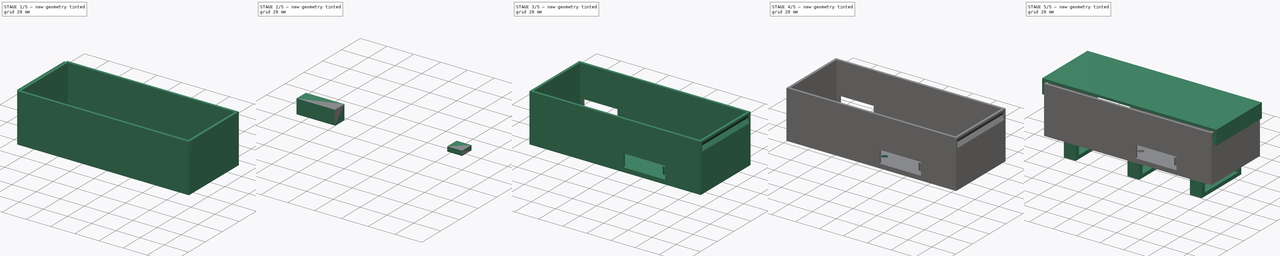
[diagram: build sequence overview — one tinted view per stage of 5, left to right]
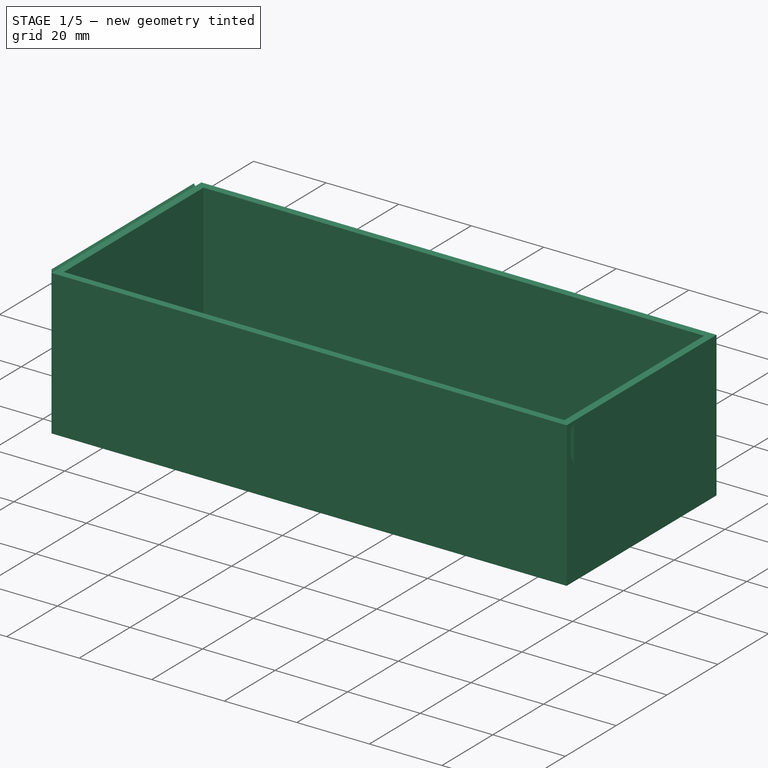
[diagram: stage 1 of 5 — iso view after this stage's code; geometry added in this stage tinted green]
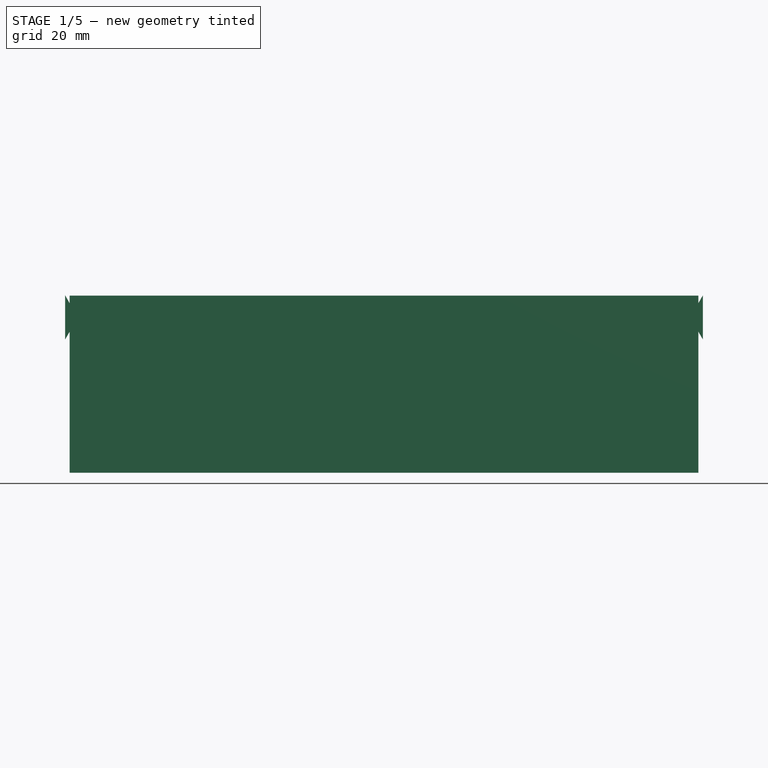
[diagram: stage 1 of 5 — front view after this stage's code; geometry added in this stage tinted green]
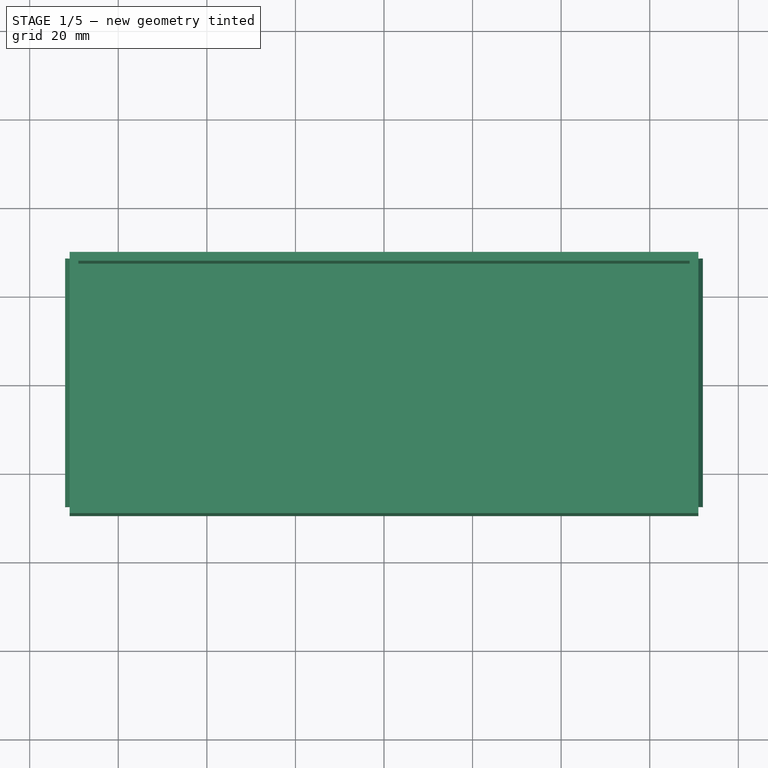
[diagram: stage 1 of 5 — top view after this stage's code; geometry added in this stage tinted green]
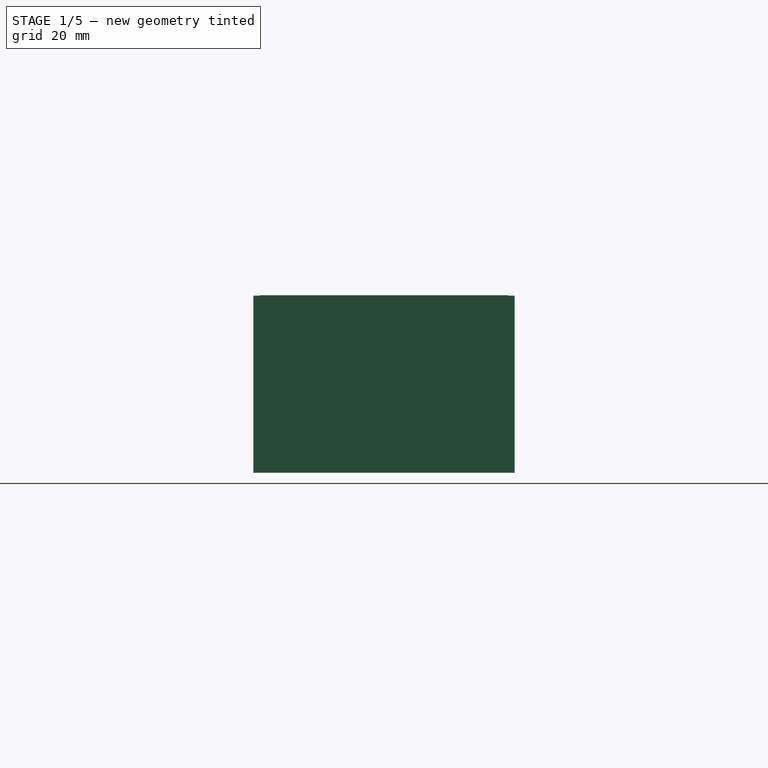
[diagram: stage 1 of 5 — right view after this stage's code; geometry added in this stage tinted green]
FCSTD DOCUMENT  (FreeCAD 0.20R29410 (Git))
Label: controller_box
License: All rights reserved
LicenseURL: http://en.wikipedia.org/wiki/All_rights_reserved
objects: Sketcher::SketchObject×11, Part::Extrusion×10, Part::Cut×7, Part::MultiFuse×2
note: 30 computed .brp shape members not serialized (recipe doc carries the construction recipe); baked Part::Feature solids carry a one-line shape summary decoded from their .brp

FEATURE [Sketcher::SketchObject] Sketch
  FullyConstrained = true
  sketch-geometry (4):
    g0: LineSegment StartX=-69 StartY=27.5 StartZ=0 EndX=69 EndY=27.5 EndZ=0
    g1: LineSegment StartX=69 StartY=27.5 StartZ=0 EndX=69 EndY=-27.5 EndZ=0
    g2: LineSegment StartX=69 StartY=-27.5 StartZ=0 EndX=-69 EndY=-27.5 EndZ=0
    g3: LineSegment StartX=-69 StartY=-27.5 StartZ=0 EndX=-69 EndY=27.5 EndZ=0
  constraints (11):
    c: Coincident(g0,g1)
    c: Coincident(g1,g2)
    c: Coincident(g2,g3)
    c: Coincident(g3,g0)
    c: Horizontal(g0)
    c: Horizontal(g2)
    c: Vertical(g1)
    c: Vertical(g3)
    c: DistanceX(g0,g0) = 138
    c: DistanceY(g1,g1) = 55
    c: Symmetric(g0,g1,g-1)
FEATURE [Sketcher::SketchObject] Sketch001
  FullyConstrained = true
  sketch-geometry (8):
    g0: LineSegment StartX=-69 StartY=27.5 StartZ=0 EndX=69 EndY=27.5 EndZ=0
    g1: LineSegment StartX=69 StartY=27.5 StartZ=0 EndX=69 EndY=-27.5 EndZ=0
    g2: LineSegment StartX=69 StartY=-27.5 StartZ=0 EndX=-69 EndY=-27.5 EndZ=0
    g3: LineSegment StartX=-69 StartY=-27.5 StartZ=0 EndX=-69 EndY=27.5 EndZ=0
    g4: LineSegment StartX=-71 StartY=29.5 StartZ=0 EndX=71 EndY=29.5 EndZ=0
    g5: LineSegment StartX=71 StartY=29.5 StartZ=0 EndX=71 EndY=-29.5 EndZ=0
    g6: LineSegment StartX=71 StartY=-29.5 StartZ=0 EndX=-71 EndY=-29.5 EndZ=0
    g7: LineSegment StartX=-71 StartY=-29.5 StartZ=0 EndX=-71 EndY=29.5 EndZ=0
  constraints (22):
    c: Coincident(g0,g1)
    c: Coincident(g1,g2)
    c: Coincident(g2,g3)
    c: Coincident(g3,g0)
    c: Horizontal(g0)
    c: Horizontal(g2)
    c: Vertical(g1)
    c: Vertical(g3)
    c: Symmetric(g0,g1,g-1)
    c: Coincident(g4,g5)
    c: Coincident(g5,g6)
    c: Coincident(g6,g7)
    c: Coincident(g7,g4)
    c: Horizontal(g4)
    c: Horizontal(g6)
    c: Vertical(g5)
    c: Vertical(g7)
    c: Symmetric(g5,g4,g-1)
    c: Distance(g0,g4) = 2
    c: Distance(g0,g7) = 2
    c: DistanceY(g-1,g4) = 29.5
    c: DistanceX(g4,g4) = 142
FEATURE [Part::Extrusion] Extrude
  Base = -> Sketch
  Dir = (0,0,1)
  DirMode = 2
  FaceMakerClass = Part::FaceMakerBullseye
  LengthFwd = 2
  LengthRev = 0
  Solid = true
  Symmetric = false
FEATURE [Part::Extrusion] Extrude001
  Base = -> Sketch001
  Dir = (0,0,1)
  DirMode = 2
  FaceMakerClass = Part::FaceMakerBullseye
  LengthFwd = 40
  LengthRev = 0
  Solid = true
  Symmetric = false
FEATURE [Part::MultiFuse] Fusion
  Shapes = -> [Extrude,Extrude001]
FEATURE [Sketcher::SketchObject] Sketch004
  FullyConstrained = false
  Placement = pos=(0,0,0) rot=(1,0,0;1.5708rad)
  sketch-geometry (12):
    g0: LineSegment StartX=-72 StartY=39.72 StartZ=0 EndX=-69.5 EndY=35.03 EndZ=0
    g1: LineSegment StartX=-69.5 StartY=35.03 StartZ=0 EndX=-72 EndY=30.44 EndZ=0
    g2: LineSegment StartX=-78.253 StartY=35.03 StartZ=0 EndX=-61.2182 EndY=35.03 EndZ=0
    g3: LineSegment StartX=-72 StartY=40.07 StartZ=0 EndX=-72 EndY=30.09 EndZ=0
    g4: LineSegment StartX=-72 StartY=30.09 StartZ=0 EndX=-69.15 EndY=35.03 EndZ=0
    g5: LineSegment StartX=-69.15 StartY=35.03 StartZ=0 EndX=-72 EndY=40.07 EndZ=0
    g6: LineSegment StartX=72 StartY=39.72 StartZ=0 EndX=69.5 EndY=35.03 EndZ=0
    g7: LineSegment StartX=69.5 StartY=35.03 StartZ=0 EndX=72 EndY=30.44 EndZ=0
    g8: LineSegment StartX=78.253 StartY=35.03 StartZ=0 EndX=61.2182 EndY=35.03 EndZ=0
    g9: LineSegment StartX=72 StartY=40.07 StartZ=0 EndX=72 EndY=30.09 EndZ=0
    g10: LineSegment StartX=72 StartY=30.09 StartZ=0 EndX=69.15 EndY=35.03 EndZ=0
    g11: LineSegment StartX=69.15 StartY=35.03 StartZ=0 EndX=72 EndY=40.07 EndZ=0
  constraints (29):
    c: Coincident(g0,g1)
    c: Horizontal(g2)
    c: PointOnObject(g0,g2)
    c: Distance(g0,g2) = 4.69
    c: Coincident(g4,g3)
    c: PointOnObject(g4,g2)
    c: Coincident(g5,g4)
    c: Coincident(g5,g3)
    c: DistanceX(g-2,g0) = -69.5
    c: DistanceY(g-1,g0) = 35.03
    c: PointOnObject(g0,g3)
    c: PointOnObject(g1,g3)
    c: Distance(g1,g2) = 4.59
    c: Distance(g0,g3) = 2.5
    c: DistanceX(g0,g4) = 0.35
    c: DistanceY(g0,g3) = 0.35
    c: DistanceY(g3,g1) = 0.35
    c: Coincident(g6,g7)
    c: Horizontal(g8)
    c: PointOnObject(g6,g8)
    c: Distance(g6,g8) = 4.69
    c: Coincident(g10,g9)
    c: PointOnObject(g10,g8)
    c: Coincident(g11,g10)
    c: Coincident(g11,g9)
    c: PointOnObject(g6,g9)
    c: PointOnObject(g7,g9)
    c: Distance(g7,g8) = 4.59
    c: Distance(g6,g9) = 2.5
FEATURE [Part::Extrusion] Extrude004
  Base = -> Sketch004
  Dir = (0,-1,2e-16)
  DirMode = 2
  FaceMakerClass = Part::FaceMakerBullseye
  LengthFwd = 56
  LengthRev = 0
  Solid = true
  Symmetric = true
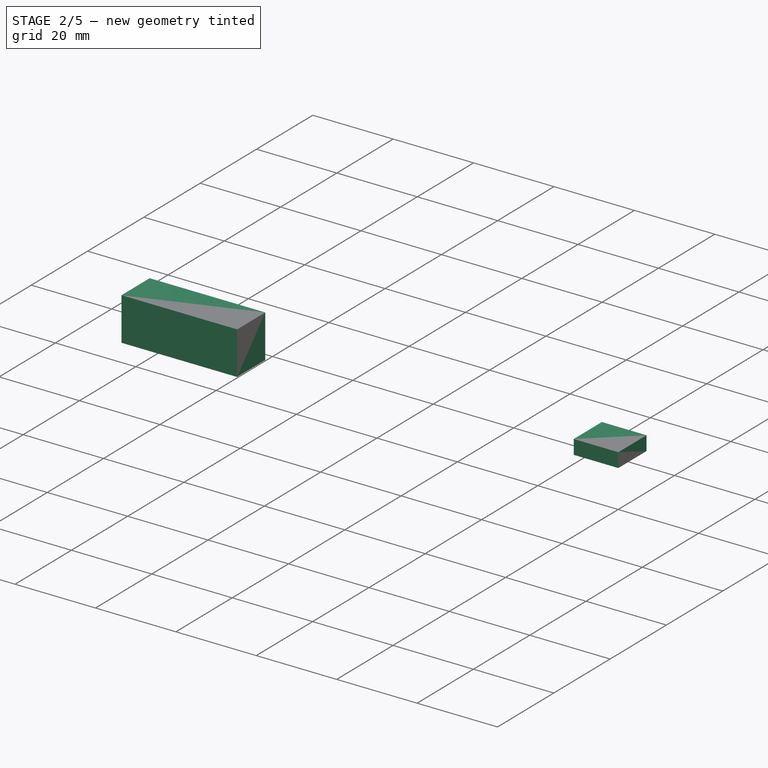
[diagram: stage 2 of 5 — iso view after this stage's code; geometry added in this stage tinted green]
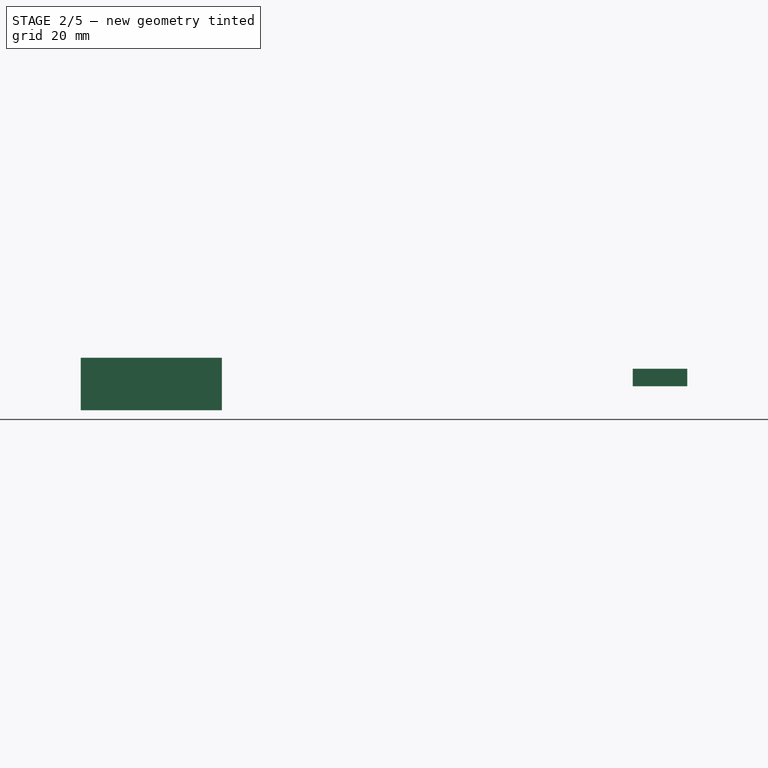
[diagram: stage 2 of 5 — front view after this stage's code; geometry added in this stage tinted green]
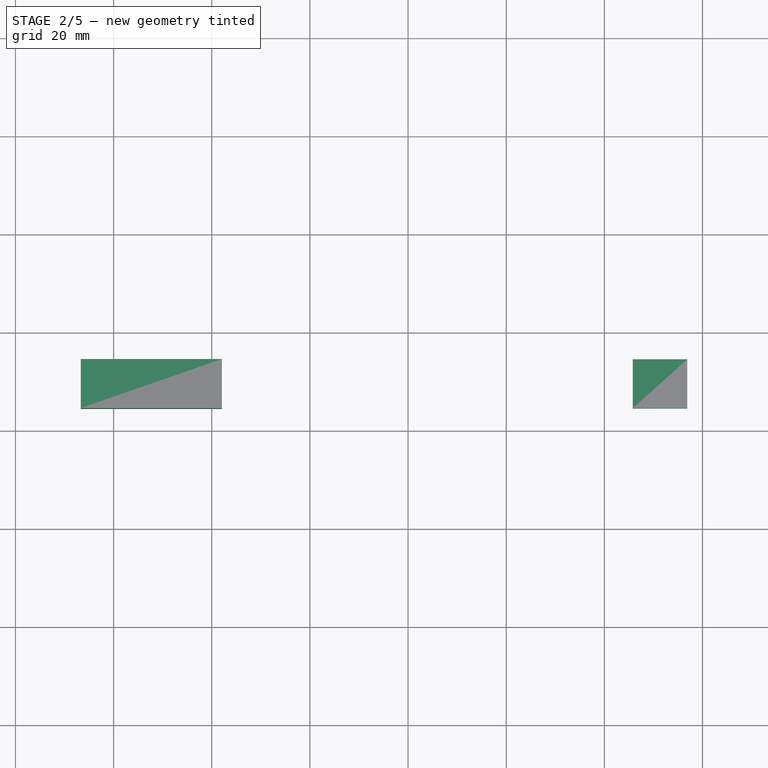
[diagram: stage 2 of 5 — top view after this stage's code; geometry added in this stage tinted green]
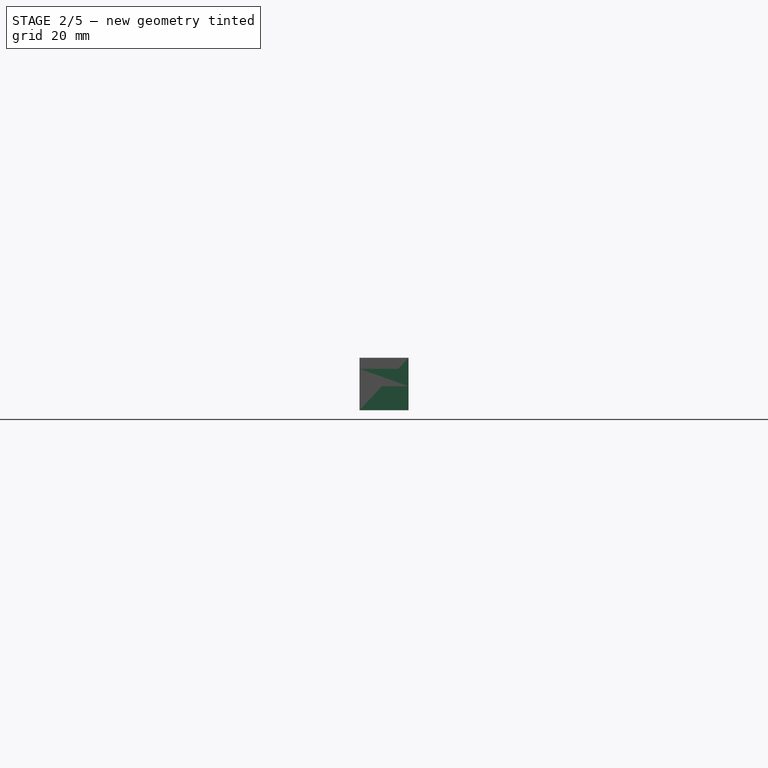
[diagram: stage 2 of 5 — right view after this stage's code; geometry added in this stage tinted green]
FEATURE [Sketcher::SketchObject] Sketch002
  FullyConstrained = false
  MapMode = 5
  Placement = pos=(0,0,2) rot=(0,0,1;0rad)
  Support = -> [Fusion]
  expr: Constraints[19] = 1.5 + 4.7
  sketch-geometry (28):
    g0: LineSegment StartX=-63 StartY=24 StartZ=0 EndX=37 EndY=24 EndZ=0
    g1: LineSegment StartX=37 StartY=24 StartZ=0 EndX=37 EndY=-24 EndZ=0
    g2: LineSegment StartX=37 StartY=-24 StartZ=0 EndX=-63 EndY=-24 EndZ=0
    g3: LineSegment StartX=-63 StartY=-24 StartZ=0 EndX=-63 EndY=24 EndZ=0
    g4: GeomPoint X=-13 Y=0 Z=0
    g5: LineSegment StartX=-13 StartY=43.9096 StartZ=0 EndX=-13 EndY=-44.7071 EndZ=0
    g6: Circle CenterX=-61 CenterY=17.8 CenterZ=0 NormalX=0 NormalY=0 NormalZ=1 AngleXU=0 Radius=1.5
    g7: Circle CenterX=-61 CenterY=17.8 CenterZ=0 NormalX=0 NormalY=0 NormalZ=1 AngleXU=0 Radius=3
    g8: LineSegment StartX=40.4 StartY=16.7 StartZ=0 EndX=66 EndY=16.7 EndZ=0
    g9: LineSegment StartX=66 StartY=16.7 StartZ=0 EndX=66 EndY=-16.7 EndZ=0
    g10: LineSegment StartX=66 StartY=-16.7 StartZ=0 EndX=40.4 EndY=-16.7 EndZ=0
    g11: LineSegment StartX=40.4 StartY=-16.7 StartZ=0 EndX=40.4 EndY=16.7 EndZ=0
    g12: GeomPoint X=53.2 Y=0 Z=0
    g13: LineSegment StartX=53.2 StartY=25.6 StartZ=0 EndX=53.2 EndY=-31.245 EndZ=0
    g14: Circle CenterX=42.9 CenterY=14.2 CenterZ=0 NormalX=0 NormalY=0 NormalZ=1 AngleXU=0 Radius=1.5
    g15: Circle CenterX=42.9 CenterY=14.2 CenterZ=0 NormalX=0 NormalY=0 NormalZ=1 AngleXU=0 Radius=3
    g16: Circle CenterX=62.71 CenterY=14.2 CenterZ=0 NormalX=0 NormalY=0 NormalZ=1 AngleXU=0 Radius=1.5
    g17: Circle CenterX=62.71 CenterY=14.2 CenterZ=0 NormalX=0 NormalY=0 NormalZ=1 AngleXU=0 Radius=3
    g18: Circle CenterX=42.11 CenterY=-14.2 CenterZ=0 NormalX=0 NormalY=0 NormalZ=1 AngleXU=0 Radius=3
    g19: Circle CenterX=42.11 CenterY=-14.2 CenterZ=0 NormalX=0 NormalY=0 NormalZ=1 AngleXU=0 Radius=1.5
    g20: Circle CenterX=62.71 CenterY=-14.2 CenterZ=0 NormalX=0 NormalY=0 NormalZ=1 AngleXU=0 Radius=3
    g21: Circle CenterX=62.71 CenterY=-14.2 CenterZ=0 NormalX=0 NormalY=0 NormalZ=1 AngleXU=0 Radius=1.5
    g22: Circle CenterX=35 CenterY=17.8 CenterZ=0 NormalX=0 NormalY=0 NormalZ=1 AngleXU=0 Radius=1.5
    g23: Circle CenterX=35 CenterY=17.8 CenterZ=0 NormalX=0 NormalY=0 NormalZ=1 AngleXU=0 Radius=3
    g24: Circle CenterX=-61 CenterY=-17.8 CenterZ=0 NormalX=0 NormalY=0 NormalZ=1 AngleXU=0 Radius=1.5
    g25: Circle CenterX=-61 CenterY=-17.8 CenterZ=0 NormalX=0 NormalY=0 NormalZ=1 AngleXU=0 Radius=3
    g26: Circle CenterX=35 CenterY=-17.8 CenterZ=0 NormalX=0 NormalY=0 NormalZ=1 AngleXU=0 Radius=1.5
    g27: Circle CenterX=35 CenterY=-17.8 CenterZ=0 NormalX=0 NormalY=0 NormalZ=1 AngleXU=0 Radius=3
  constraints (57):
    c: Coincident(g0,g1)
    c: Coincident(g1,g2)
    c: Coincident(g2,g3)
    c: Coincident(g3,g0)
    c: Horizontal(g0)
    c: Horizontal(g2)
    c: Vertical(g1)
    c: Vertical(g3)
    c: DistanceY(g3,g3) = 48
    c: DistanceX(g0,g0) = 100
    c: PointOnObject(g4,g-1)
    c: Symmetric(g1,g0,g4)
    c: DistanceX(g4,g-1) = 13
    c: Vertical(g5)
    c: PointOnObject(g4,g5)
    c: Coincident(g7,g6)
    c: Diameter(g7) = 6
    c: Diameter(g6) = 3
    c: Distance(g6,g3) = 2
    c: Distance(g6,g0) = 6.2
    c: Coincident(g8,g9)
    c: Coincident(g9,g10)
    c: Coincident(g10,g11)
    c: Coincident(g11,g8)
    c: Horizontal(g8)
    c: Horizontal(g10)
    c: Vertical(g9)
    c: Vertical(g11)
    c: DistanceX(g10,g10) = 25.6
    c: DistanceY(g9,g9) = 33.4
    c: PointOnObject(g12,g-1)
    c: Symmetric(g8,g9,g12)
    c: Vertical(g13)
    c: PointOnObject(g12,g13)
    c: Coincident(g15,g14)
    c: Diameter(g14) = 3
    c: Diameter(g15) = 6
    c: Distance(g14,g8) = 2.5
    c: Distance(g14,g11) = 2.5
    c: Coincident(g17,g16)
    c: Diameter(g16) = 3
    c: Diameter(g17) = 6
    c: Coincident(g18,g19)
    c: Diameter(g19) = 3
    c: Diameter(g18) = 6
    c: Coincident(g20,g21)
    c: Diameter(g21) = 3
    c: Diameter(g20) = 6
    c: Coincident(g23,g22)
    c: Diameter(g23) = 6
    c: Diameter(g22) = 3
    c: Coincident(g25,g24)
    c: Diameter(g25) = 6
    c: Diameter(g24) = 3
    c: Coincident(g27,g26)
    c: Diameter(g27) = 6
    c: Diameter(g26) = 3
FEATURE [Part::Extrusion] Extrude002
  Base = -> Sketch002
  Dir = (0,0,1)
  DirMode = 2
  FaceMakerClass = Part::FaceMakerBullseye
  LengthFwd = 6
  LengthRev = 0
  Solid = true
  Symmetric = false
FEATURE [Part::MultiFuse] Fusion001
  Shapes = -> [Fusion,Extrude002]
FEATURE [Part::Cut] Cut
  Base = -> Fusion001
  Tool = -> Extrude004
FEATURE [Sketcher::SketchObject] Sketch005
  FullyConstrained = false
  MapMode = 5
  Placement = pos=(0,29.5,0) rot=(0,0.707107,0.707107;3.14159rad)
  Support = -> [Cut]
  sketch-geometry (8):
    g0: LineSegment StartX=-56.8931 StartY=11.2229 StartZ=0 EndX=-45.7868 EndY=11.2229 EndZ=0
    g1: LineSegment StartX=-45.7868 StartY=11.2229 StartZ=0 EndX=-45.7868 EndY=7.66316 EndZ=0
    g2: LineSegment StartX=-45.7868 StartY=7.66316 StartZ=0 EndX=-56.8931 EndY=7.66316 EndZ=0
    g3: LineSegment StartX=-56.8931 StartY=7.66316 StartZ=0 EndX=-56.8931 EndY=11.2229 EndZ=0
    g4: LineSegment StartX=37.9367 StartY=13.4681 StartZ=0 EndX=66.6991 EndY=13.4681 EndZ=0
    g5: LineSegment StartX=66.6991 StartY=13.4681 StartZ=0 EndX=66.6991 EndY=2.77366 EndZ=0
    g6: LineSegment StartX=66.6991 StartY=2.77366 StartZ=0 EndX=37.9367 EndY=2.77366 EndZ=0
    g7: LineSegment StartX=37.9367 StartY=2.77366 StartZ=0 EndX=37.9367 EndY=13.4681 EndZ=0
  constraints (16):
    c: Coincident(g0,g1)
    c: Coincident(g1,g2)
    c: Coincident(g2,g3)
    c: Coincident(g3,g0)
    c: Horizontal(g0)
    c: Horizontal(g2)
    c: Vertical(g1)
    c: Vertical(g3)
    c: Coincident(g4,g5)
    c: Coincident(g5,g6)
    c: Coincident(g6,g7)
    c: Coincident(g7,g4)
    c: Horizontal(g4)
    c: Horizontal(g6)
    c: Vertical(g5)
    c: Vertical(g7)
FEATURE [Part::Extrusion] Extrude005
  Base = -> Sketch005
  Dir = (0,1,-2e-16)
  DirMode = 2
  FaceMakerClass = Part::FaceMakerBullseye
  LengthFwd = 10
  LengthRev = 0
  Solid = true
  Symmetric = true
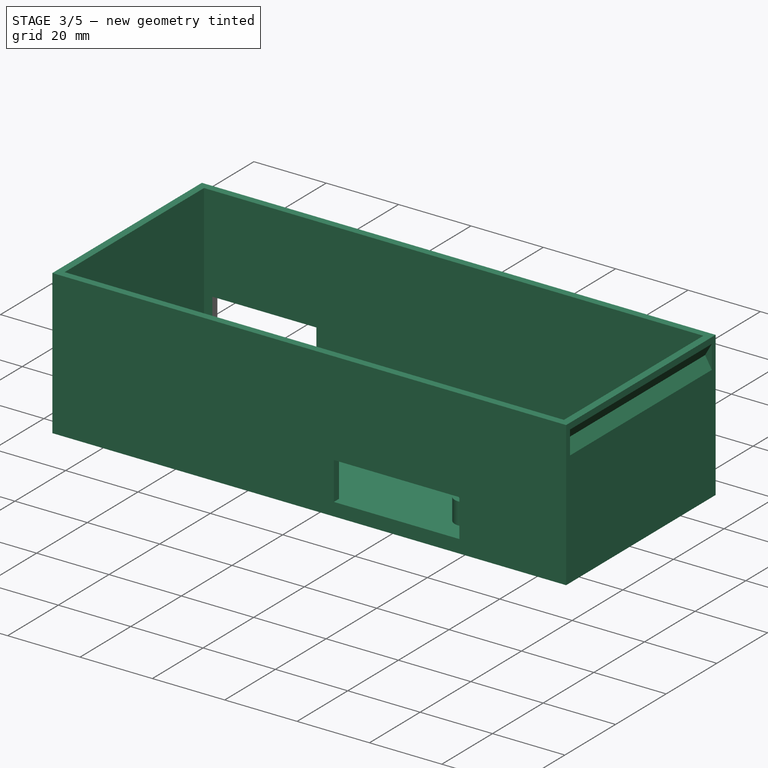
[diagram: stage 3 of 5 — iso view after this stage's code; geometry added in this stage tinted green]
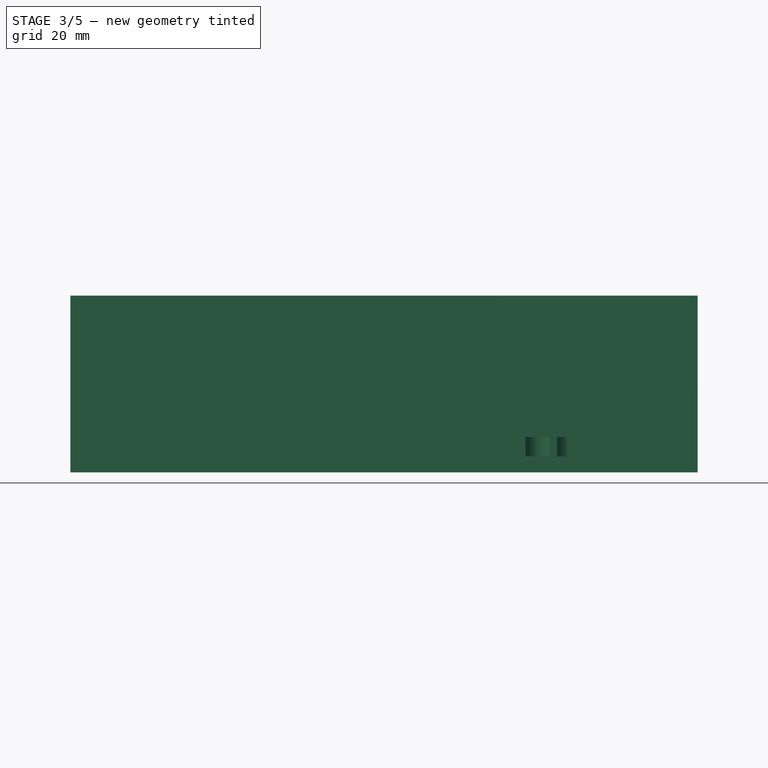
[diagram: stage 3 of 5 — front view after this stage's code; geometry added in this stage tinted green]
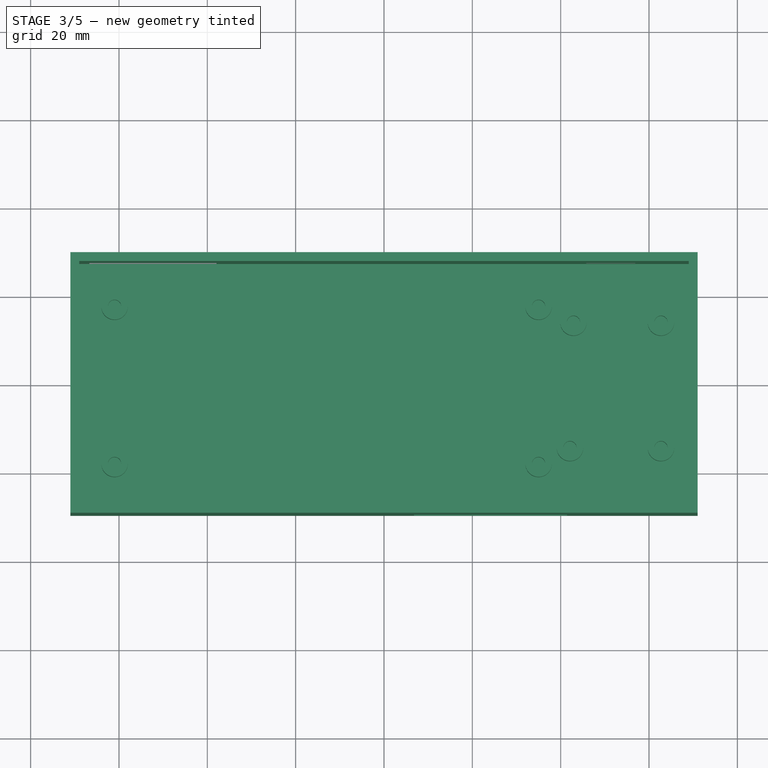
[diagram: stage 3 of 5 — top view after this stage's code; geometry added in this stage tinted green]
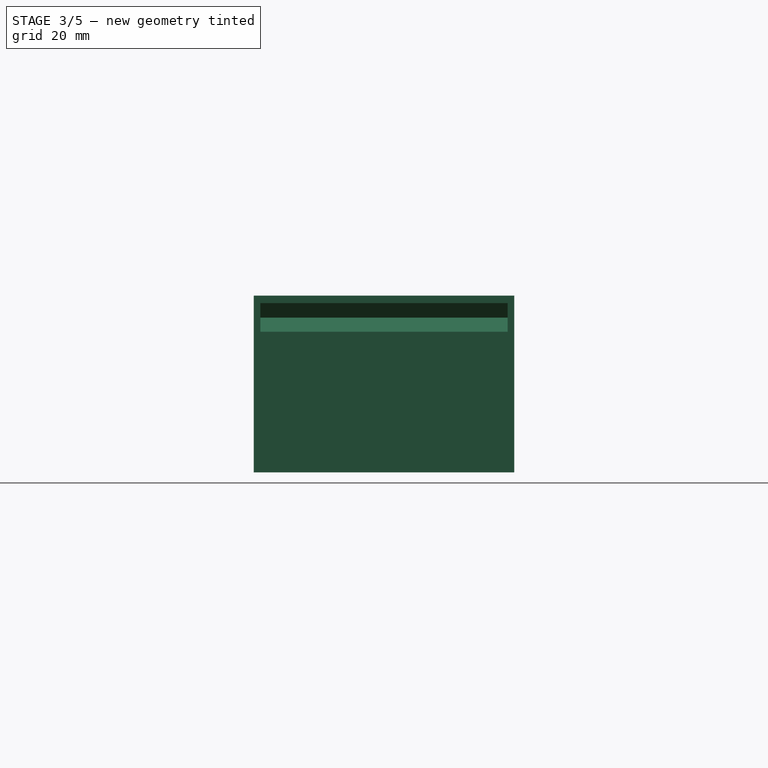
[diagram: stage 3 of 5 — right view after this stage's code; geometry added in this stage tinted green]
FEATURE [Part::Cut] Cut001
  Base = -> Cut
  Tool = -> Extrude005
FEATURE [Sketcher::SketchObject] Sketch006
  FullyConstrained = true
FEATURE [Sketcher::SketchObject] Sketch007
  FullyConstrained = false
  MapMode = 5
  Placement = pos=(0,-29.5,0) rot=(1,0,0;1.5708rad)
  Support = -> [Cut001]
  sketch-geometry (5):
    g0: GeomPoint X=30.9491 Y=0 Z=0
    g1: LineSegment StartX=6.80286 StartY=14.0949 StartZ=0 EndX=41.4734 EndY=14.0949 EndZ=0
    g2: LineSegment StartX=41.4734 StartY=14.0949 StartZ=0 EndX=41.4734 EndY=3.62983 EndZ=0
    g3: LineSegment StartX=41.4734 StartY=3.62983 StartZ=0 EndX=6.80286 EndY=3.62983 EndZ=0
    g4: LineSegment StartX=6.80286 StartY=3.62983 StartZ=0 EndX=6.80286 EndY=14.0949 EndZ=0
  constraints (9):
    c: PointOnObject(g0,g-1)
    c: Coincident(g1,g2)
    c: Coincident(g2,g3)
    c: Coincident(g3,g4)
    c: Coincident(g4,g1)
    c: Horizontal(g1)
    c: Horizontal(g3)
    c: Vertical(g2)
    c: Vertical(g4)
FEATURE [Part::Extrusion] Extrude006
  Base = -> Sketch007
  Dir = (0,-1,2e-16)
  DirMode = 2
  FaceMakerClass = Part::FaceMakerBullseye
  LengthFwd = 10
  LengthRev = 0
  Solid = true
  Symmetric = true
FEATURE [Part::Cut] Cut002  label="Box"
  Base = -> Cut001
  Tool = -> Extrude006
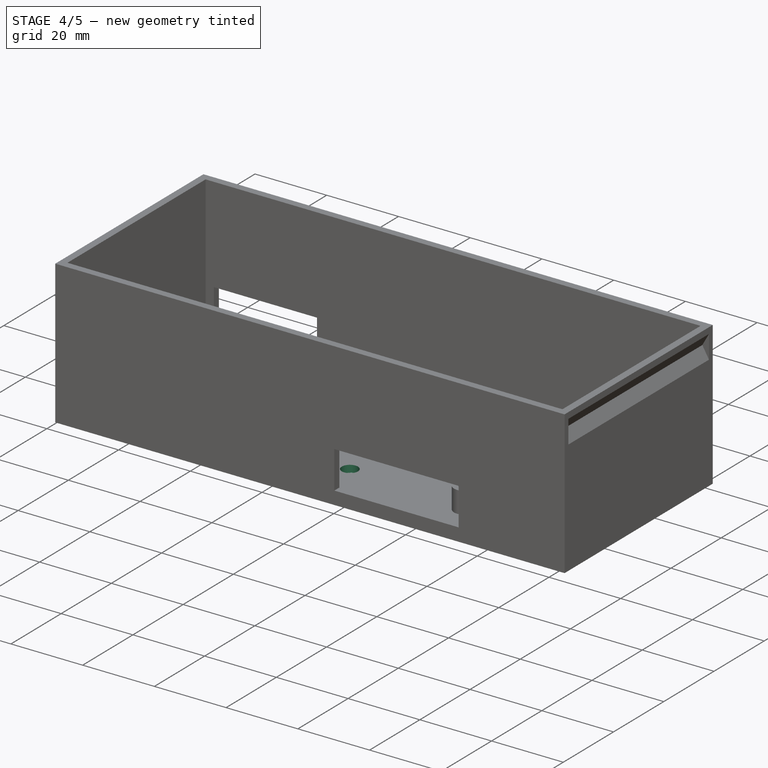
[diagram: stage 4 of 5 — iso view after this stage's code; geometry added in this stage tinted green]
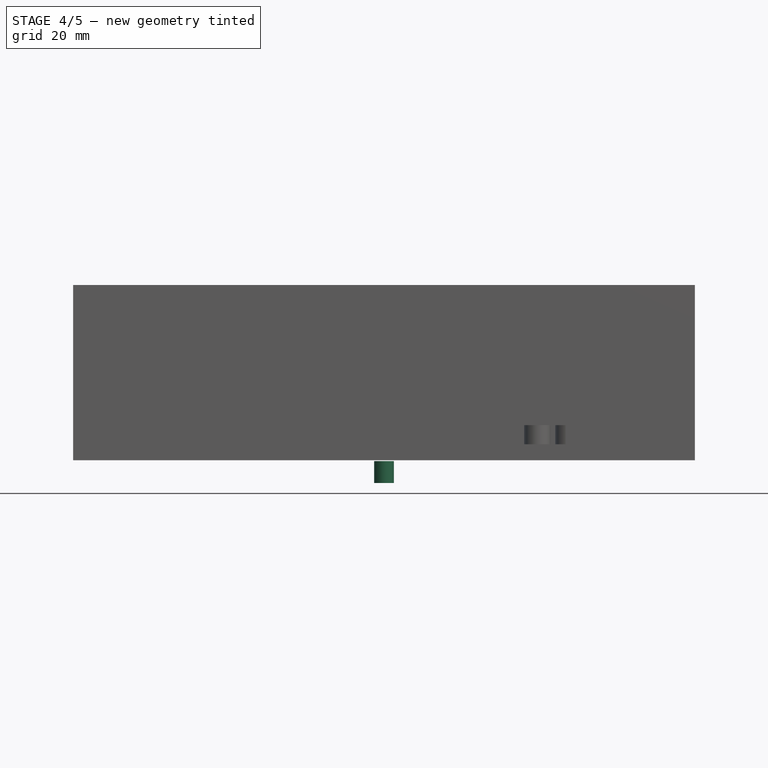
[diagram: stage 4 of 5 — front view after this stage's code; geometry added in this stage tinted green]
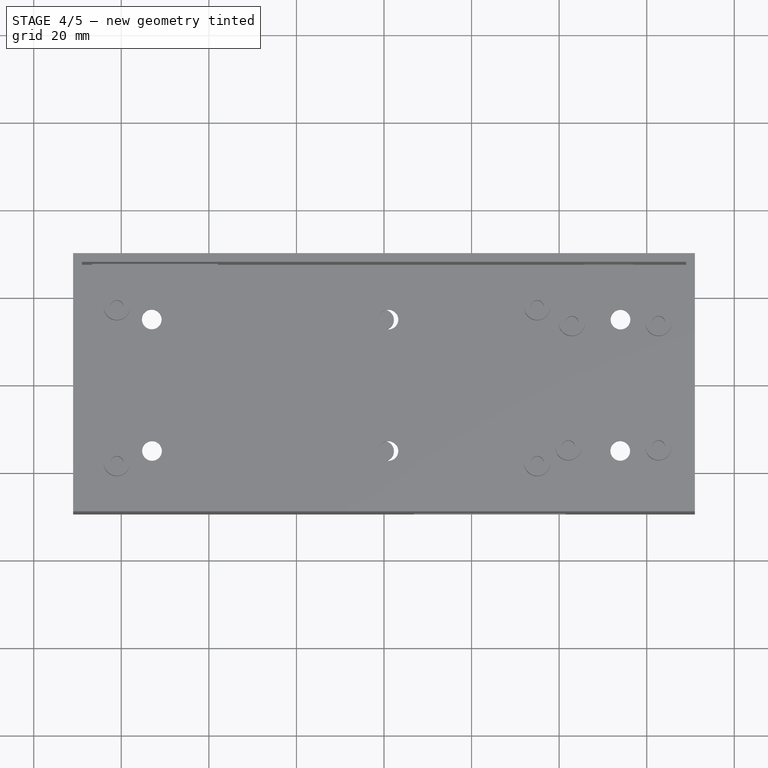
[diagram: stage 4 of 5 — top view after this stage's code; geometry added in this stage tinted green]
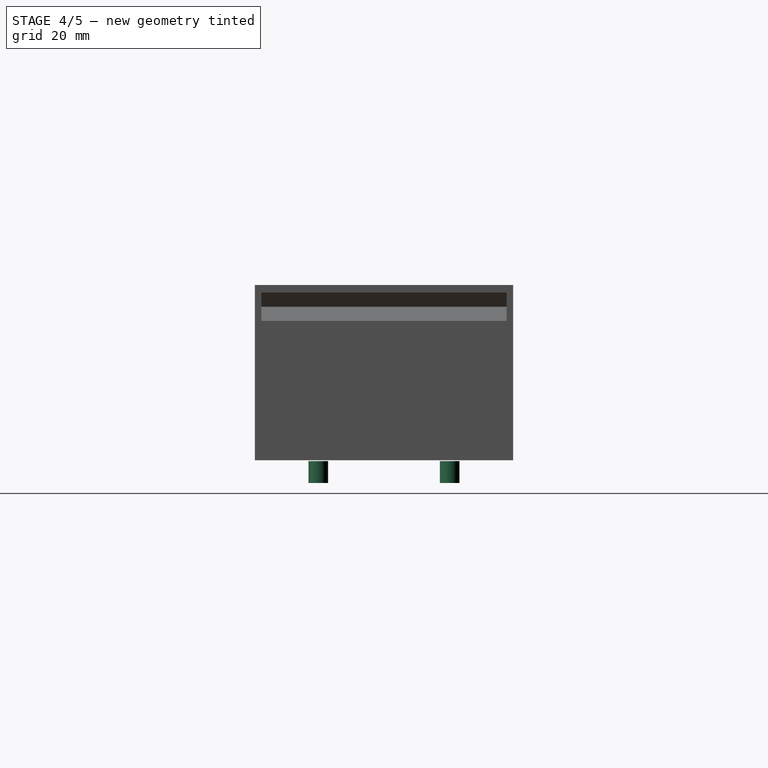
[diagram: stage 4 of 5 — right view after this stage's code; geometry added in this stage tinted green]
FEATURE [Sketcher::SketchObject] Sketch008
  FullyConstrained = false
  Placement = pos=(0,0,0) rot=(0.57735,0.57735,0.57735;2.0944rad)
  sketch-geometry (9):
    g0: LineSegment StartX=-20 StartY=-6.2 StartZ=0 EndX=20 EndY=-6.2 EndZ=0
    g1: LineSegment StartX=20 StartY=-6.2 StartZ=0 EndX=20 EndY=-12.2 EndZ=0
    g2: LineSegment StartX=20 StartY=-12.2 StartZ=0 EndX=-20 EndY=-12.2 EndZ=0
    g3: LineSegment StartX=-20 StartY=-12.2 StartZ=0 EndX=-20 EndY=-6.2 EndZ=0
    g4: LineSegment StartX=-24 StartY=-0.2 StartZ=0 EndX=24 EndY=-0.2 EndZ=0
    g5: LineSegment StartX=24 StartY=-0.2 StartZ=0 EndX=24 EndY=-15.2 EndZ=0
    g6: LineSegment StartX=24 StartY=-15.2 StartZ=0 EndX=-24 EndY=-15.2 EndZ=0
    g7: LineSegment StartX=-24 StartY=-15.2 StartZ=0 EndX=-24 EndY=-0.2 EndZ=0
    g8: GeomPoint X=0 Y=-9.2 Z=0
  constraints (24):
    c: Coincident(g0,g1)
    c: Coincident(g1,g2)
    c: Coincident(g2,g3)
    c: Coincident(g3,g0)
    c: Horizontal(g0)
    c: Horizontal(g2)
    c: Vertical(g1)
    c: Vertical(g3)
    c: DistanceX(g0,g0) = 40
    c: DistanceY(g1,g1) = 6
    c: Coincident(g4,g5)
    c: Coincident(g5,g6)
    c: Coincident(g6,g7)
    c: Coincident(g7,g4)
    c: Horizontal(g4)
    c: Horizontal(g6)
    c: Vertical(g5)
    c: Vertical(g7)
    c: PointOnObject(g8,g-2)
    c: Symmetric(g0,g1,g8)
    c: Distance(g-1,g4) = 0.2
    c: Distance(g0,g4) = 6
    c: Distance(g0,g7) = 4
    c: Distance(g2,g6) = 3
FEATURE [Part::Extrusion] Extrude007
  Base = -> Sketch008
  Dir = (1,0,0)
  DirMode = 2
  FaceMakerClass = Part::FaceMakerBullseye
  LengthFwd = 10
  LengthRev = 0
  Solid = true
  Symmetric = true
FEATURE [Sketcher::SketchObject] Sketch009
  FullyConstrained = false
  MapMode = 5
  Placement = pos=(0,0,-0.2) rot=(0,0,1;0rad)
  Support = -> [Extrude007]
  sketch-geometry (2):
    g0: Circle CenterX=0 CenterY=15 CenterZ=0 NormalX=0 NormalY=0 NormalZ=1 AngleXU=0 Radius=2.25
    g1: Circle CenterX=0 CenterY=-15 CenterZ=0 NormalX=0 NormalY=0 NormalZ=1 AngleXU=0 Radius=2.25
  constraints (4):
    c: PointOnObject(g0,g-2)
    c: Diameter(g0) = 4.5
    c: Distance(g-1,g0) = 15
    c: Diameter(g1) = 4.5
FEATURE [Part::Extrusion] Extrude008
  Base = -> Sketch009
  Dir = (0,0,1)
  DirMode = 2
  FaceMakerClass = Part::FaceMakerBullseye
  LengthFwd = 0
  LengthRev = 5
  Solid = true
  Symmetric = false
FEATURE [Sketcher::SketchObject] Sketch010
  FullyConstrained = false
  MapMode = 5
  Placement = pos=(0,0,2) rot=(0,0,1;0rad)
  Support = -> [Cut002]
  sketch-geometry (6):
    g0: Circle CenterX=1.01633 CenterY=14.9983 CenterZ=0 NormalX=0 NormalY=0 NormalZ=1 AngleXU=0 Radius=2.25
    g1: Circle CenterX=-53.0404 CenterY=15.0218 CenterZ=0 NormalX=0 NormalY=0 NormalZ=1 AngleXU=0 Radius=2.25
    g2: Circle CenterX=-52.9807 CenterY=-15.0107 CenterZ=0 NormalX=0 NormalY=0 NormalZ=1 AngleXU=0 Radius=2.25
    g3: Circle CenterX=1.00987 CenterY=-15.0289 CenterZ=0 NormalX=0 NormalY=0 NormalZ=1 AngleXU=0 Radius=2.25
    g4: Circle CenterX=53.955 CenterY=-15.0007 CenterZ=0 NormalX=0 NormalY=0 NormalZ=1 AngleXU=0 Radius=2.25
    g5: Circle CenterX=54.0134 CenterY=14.9858 CenterZ=0 NormalX=0 NormalY=0 NormalZ=1 AngleXU=0 Radius=2.25
  constraints (2):
    c: Diameter(g0) = 4.5
    c: Equal(g0,g1) = 4.5
FEATURE [Part::Extrusion] Extrude009
  Base = -> Sketch010
  Dir = (0,0,1)
  DirMode = 2
  FaceMakerClass = Part::FaceMakerBullseye
  LengthFwd = 10
  LengthRev = 0
  Solid = true
  Symmetric = true
FEATURE [Part::Cut] Cut006
  Base = -> Cut002
  Tool = -> Extrude009
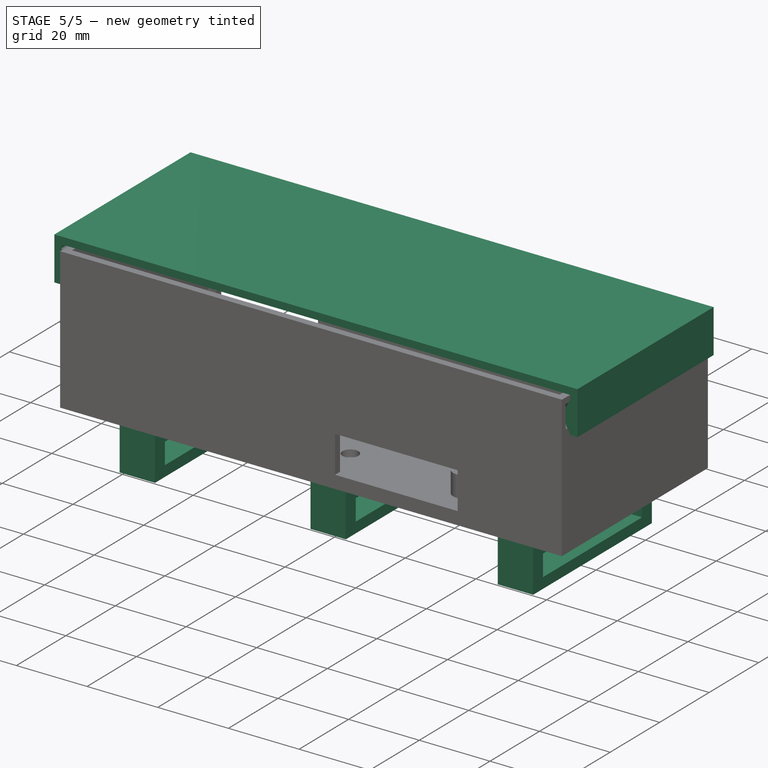
[diagram: stage 5 of 5 — iso view after this stage's code; geometry added in this stage tinted green]
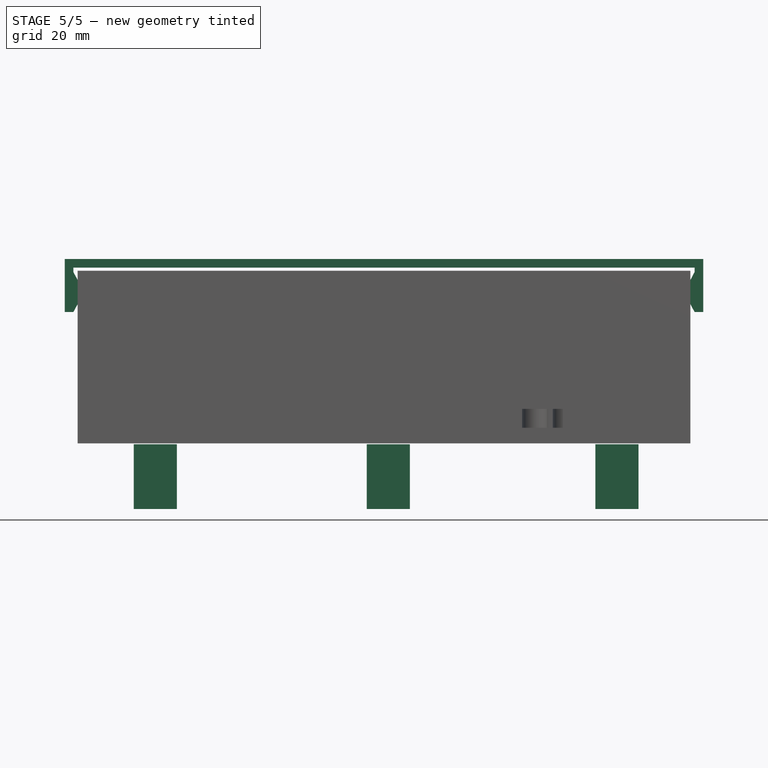
[diagram: stage 5 of 5 — front view after this stage's code; geometry added in this stage tinted green]
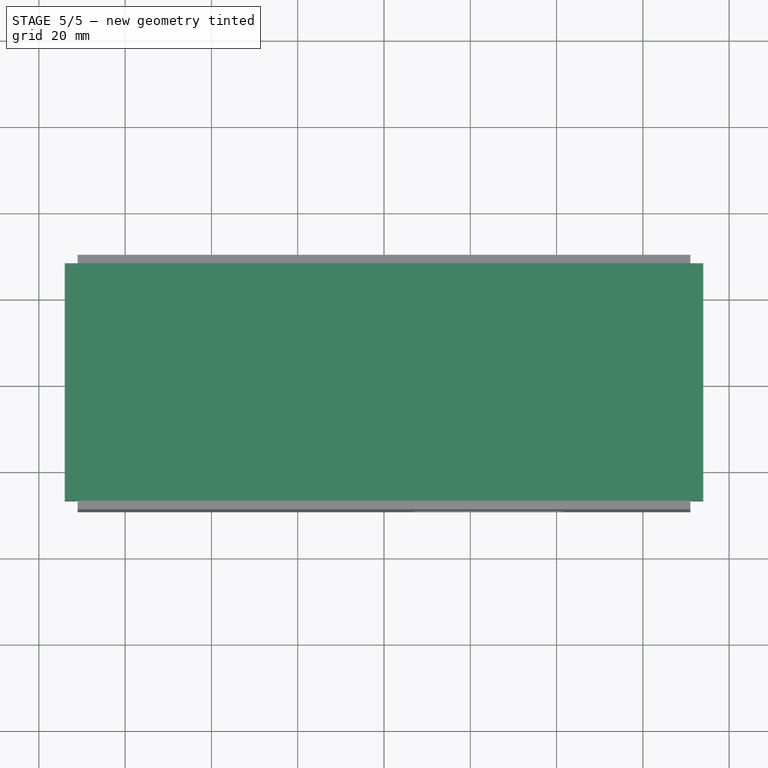
[diagram: stage 5 of 5 — top view after this stage's code; geometry added in this stage tinted green]
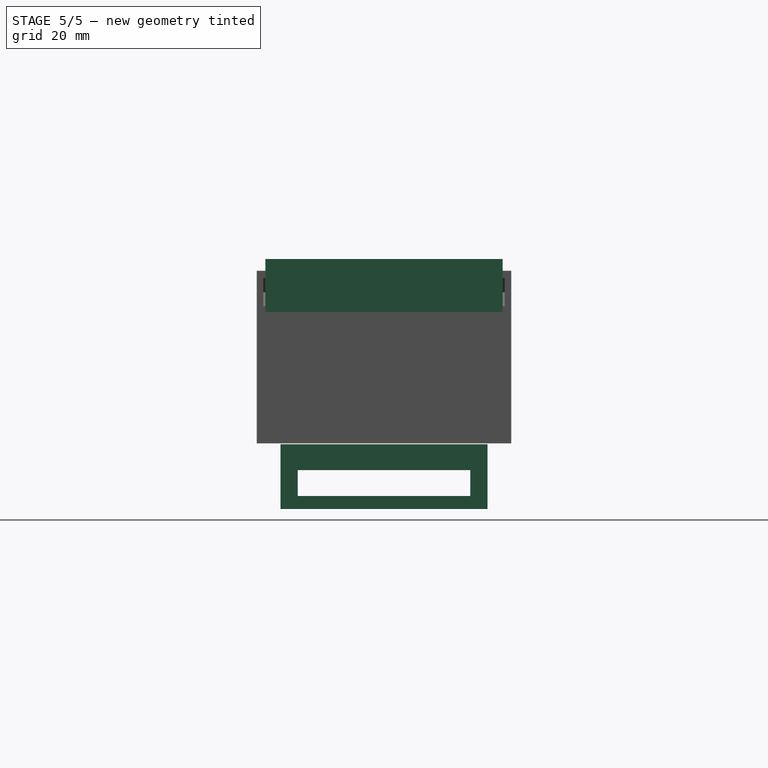
[diagram: stage 5 of 5 — right view after this stage's code; geometry added in this stage tinted green]
FEATURE [Sketcher::SketchObject] Sketch003
  FullyConstrained = false
  Placement = pos=(0,0,0) rot=(1,0,0;1.5708rad)
  sketch-geometry (17):
    g0: LineSegment StartX=-72 StartY=43.6824 StartZ=0 EndX=-72 EndY=-6.31757 EndZ=0
    g1: LineSegment StartX=-72 StartY=39.7241 StartZ=0 EndX=-69.5 EndY=35.0341 EndZ=0
    g2: LineSegment StartX=-69.5 StartY=35.0341 StartZ=0 EndX=-72 EndY=30.4441 EndZ=0
    g3: LineSegment StartX=-72 StartY=30.4441 StartZ=0 EndX=-74 EndY=30.4441 EndZ=0
    g4: LineSegment StartX=-74 StartY=30.4441 StartZ=0 EndX=-74 EndY=42.7241 EndZ=0
    g5: LineSegment StartX=-74 StartY=42.7241 StartZ=0 EndX=0 EndY=42.7241 EndZ=0
    g6: LineSegment StartX=-72 StartY=39.7241 StartZ=0 EndX=-72 EndY=40.7241 EndZ=0
    g7: LineSegment StartX=-72 StartY=40.7241 StartZ=0 EndX=0 EndY=40.7241 EndZ=0
    g8: LineSegment StartX=-78.253 StartY=35.0341 StartZ=0 EndX=-61.2182 EndY=35.0341 EndZ=0
    g9: LineSegment StartX=72 StartY=39.7241 StartZ=0 EndX=69.5 EndY=35.0341 EndZ=0
    g10: LineSegment StartX=69.5 StartY=35.0341 StartZ=0 EndX=72 EndY=30.4441 EndZ=0
    g11: LineSegment StartX=72 StartY=30.4441 StartZ=0 EndX=74 EndY=30.4441 EndZ=0
    g12: LineSegment StartX=74 StartY=30.4441 StartZ=0 EndX=74 EndY=42.7241 EndZ=0
    g13: LineSegment StartX=74 StartY=42.7241 StartZ=0 EndX=0 EndY=42.7241 EndZ=0
    g14: LineSegment StartX=72 StartY=39.7241 StartZ=0 EndX=72 EndY=40.7241 EndZ=0
    g15: LineSegment StartX=72 StartY=40.7241 StartZ=0 EndX=0 EndY=40.7241 EndZ=0
    g16: LineSegment StartX=78.253 StartY=35.0341 StartZ=0 EndX=61.2182 EndY=35.0341 EndZ=0
  constraints (41):
    c: Vertical(g0)
    c: DistanceY(g0,g0) = 50
    c: DistanceX(g0,g-1) = 72
    c: PointOnObject(g1,g0)
    c: Coincident(g1,g2)
    c: PointOnObject(g2,g0)
    c: Coincident(g2,g3)
    c: Horizontal(g3)
    c: Coincident(g3,g4)
    c: Vertical(g4)
    c: Coincident(g4,g5)
    c: PointOnObject(g5,g-2)
    c: Horizontal(g5)
    c: Coincident(g1,g6)
    c: PointOnObject(g6,g0)
    c: Coincident(g6,g7)
    c: PointOnObject(g7,g-2)
    c: Horizontal(g7)
    c: Distance(g1,g4) = 2
    c: Distance(g6,g5) = 2
    c: DistanceY(g1,g6) = 1
    c: DistanceY(g4,g4) = 12.28
    c: Horizontal(g8)
    c: PointOnObject(g1,g8)
    c: Distance(g1,g0) = 2.5
    c: Distance(g1,g8) = 4.69
    c: Coincident(g9,g10)
    c: Coincident(g10,g11)
    c: Horizontal(g11)
    c: Coincident(g11,g12)
    c: Vertical(g12)
    c: Coincident(g12,g13)
    c: Horizontal(g13)
    c: Coincident(g9,g14)
    c: Coincident(g14,g15)
    c: Horizontal(g15)
    c: Distance(g9,g12) = 2
    c: Distance(g14,g13) = 2
    c: Horizontal(g16)
    c: PointOnObject(g9,g16)
    c: Distance(g9,g16) = 4.69
FEATURE [Part::Extrusion] Extrude003  label="Lid"
  Base = -> Sketch003
  Dir = (0,-1,-6e-16)
  DirMode = 2
  FaceMakerClass = Part::FaceMakerBullseye
  LengthFwd = 55
  LengthRev = 0
  Solid = true
  Symmetric = true
FEATURE [Part::Cut] Cut003  label="Belt Holder"
  Base = -> Extrude007
  Placement = pos=(-53,0,0) rot=(0,0,1;0rad)
  Tool = -> Extrude008
FEATURE [Part::Cut] Cut004  label="Belt Holder001"
  Base = -> Extrude007
  Placement = pos=(54,0,0) rot=(0,0,1;0rad)
  Tool = -> Extrude008
FEATURE [Part::Cut] Cut005  label="Belt Holder002"
  Base = -> Extrude007
  Placement = pos=(1,0,0) rot=(0,0,1;0rad)
  Tool = -> Extrude008
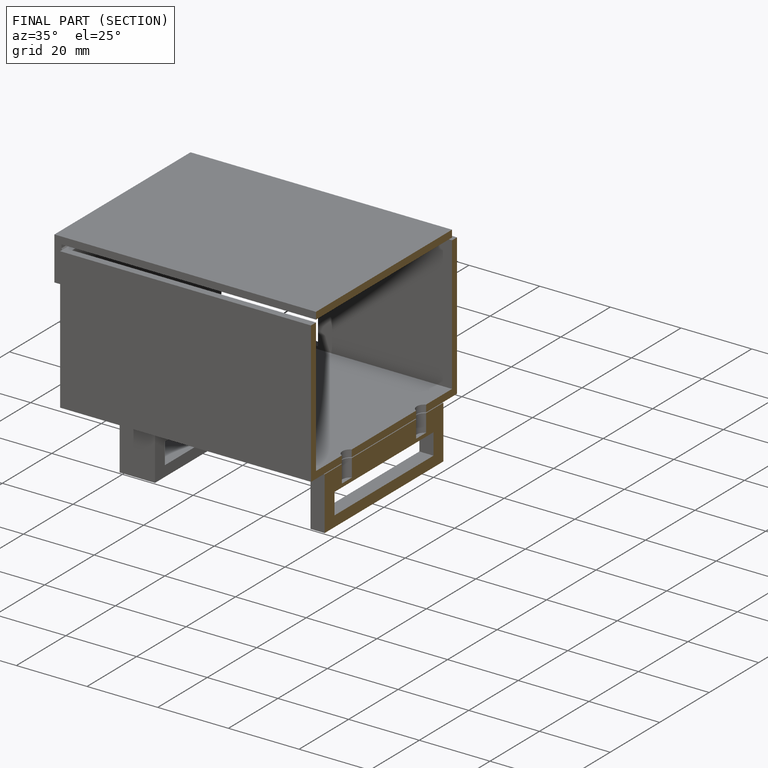
[diagram: finished part — half-section view (interior)]
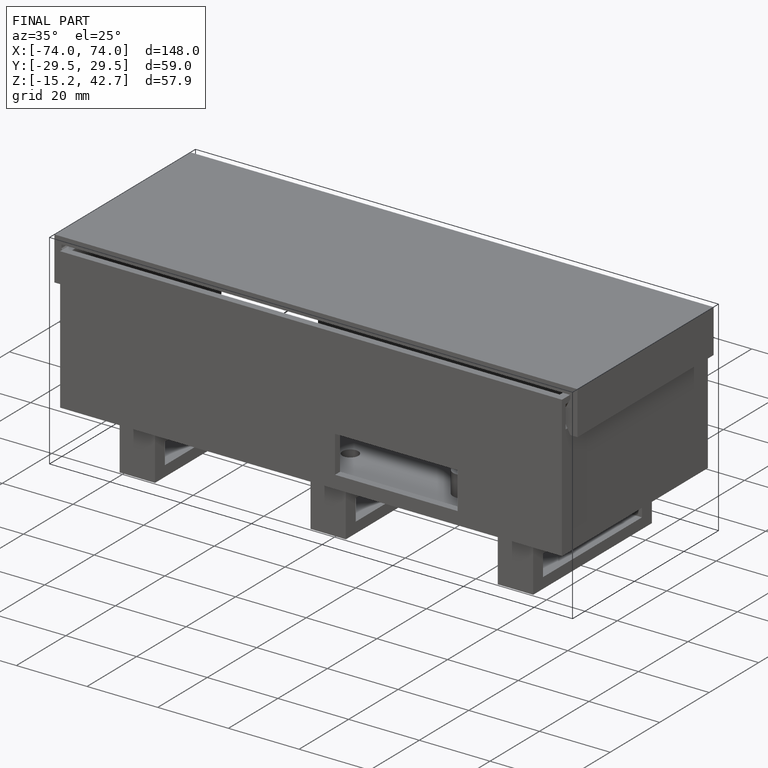
[diagram: finished part — iso view with bounding-box wireframe]
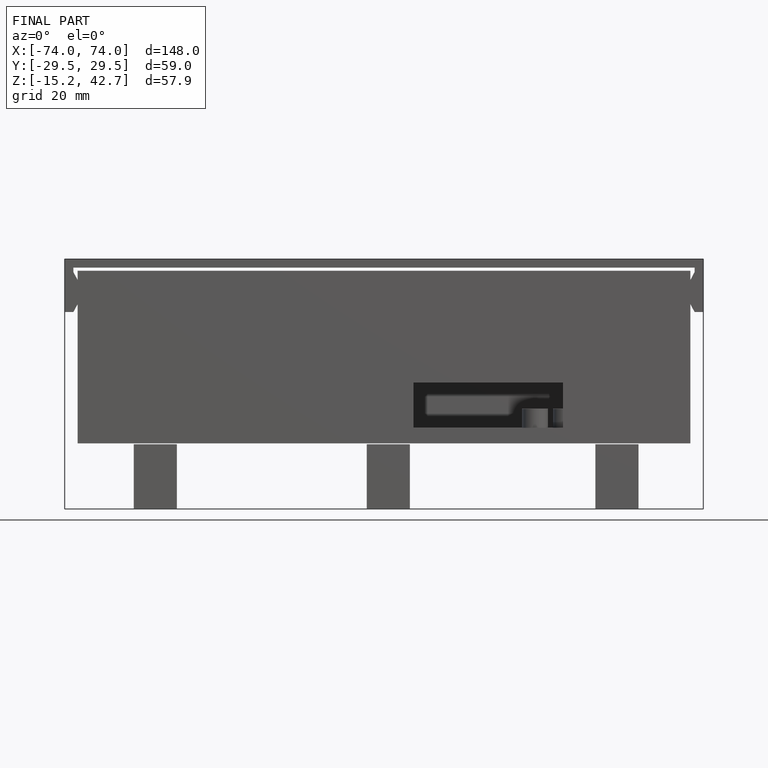
[diagram: finished part — front view with bounding-box wireframe]
